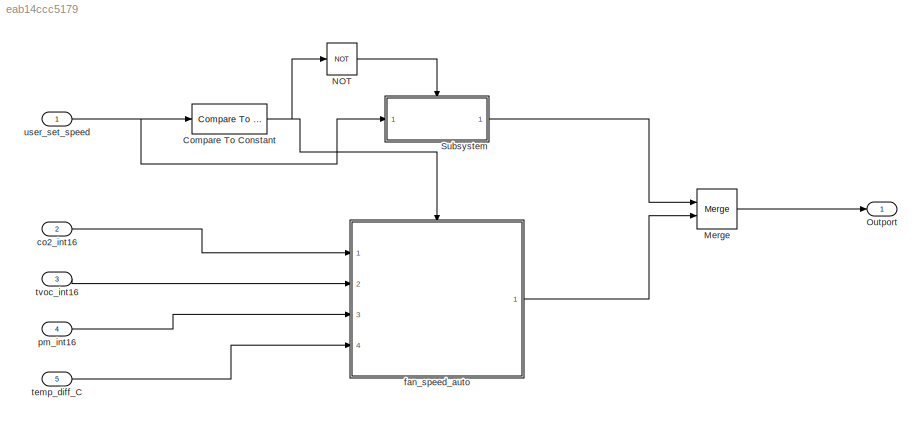
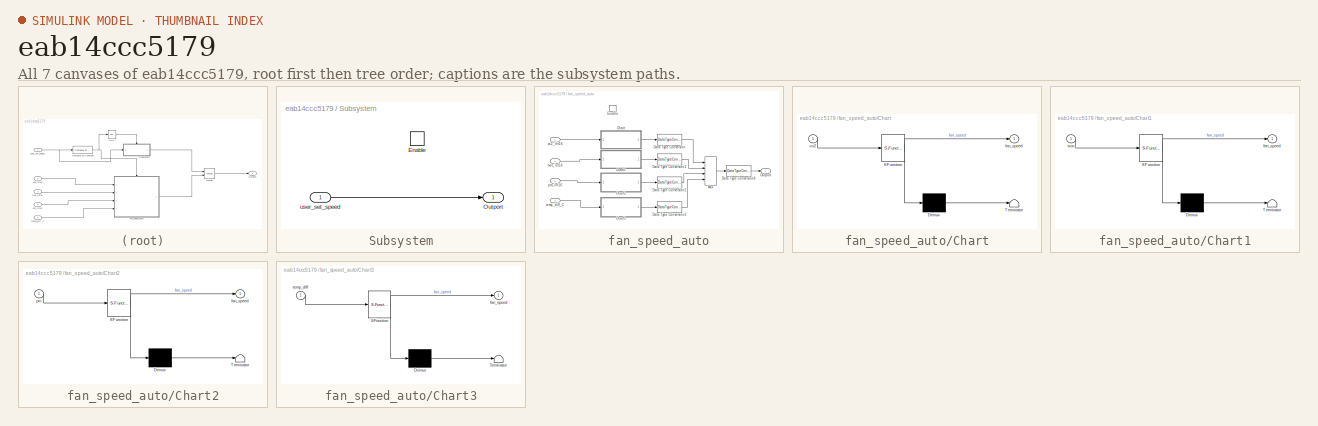
[diagram: thumbnail index - all 7 canvases of the model, root first then tree order]
MODEL slx_eab14ccc5179
KIND model
CONFIG AbsTol = auto
CONFIG EnableMultiTasking = off
CONFIG FixedStep = auto
CONFIG MaxStep = auto
CONFIG MinStep = auto
CONFIG RelTol = 1e-3
CONFIG SampleTimeConstraint = Unconstrained
CONFIG SolverName = VariableStepAuto
CONFIG StartTime = 0.0
CONFIG StopTime = 10.0
BLOCK [Reference] Compare To Constant  REF=simulink/Logic and Bit
Operations/Compare
To Constant
  Ports = [1, 1]
  SourceBlock = simulink/Logic and Bit\nOperations/Compare\nTo Constant
  SourceProductBaseCode = SL
  SourceType = Compare To Constant
BLOCK [Merge] Merge
  Ports = [2, 1]
BLOCK [Logic] NOT
  AllPortsSameDT = off
  IconShape = distinctive
  Operator = NOT
  OutDataTypeStr = boolean
  Ports = [1, 1]
BLOCK [Outport] Outport
BLOCK [SubSystem] Subsystem
  Ports = [1, 1, 1]
  RequestExecContextInheritance = off
BLOCK [EnablePort] Subsystem/Enable
  Ports = []
BLOCK [Outport] Subsystem/Outport
BLOCK [Inport] Subsystem/user_set_speed
BLOCK [Inport] co2_int16
  OutDataTypeStr = uint16
  Port = 2
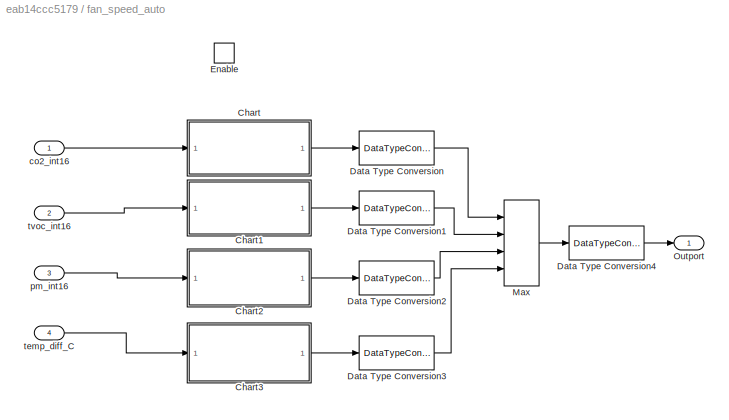
BLOCK [SubSystem] fan_speed_auto
  Ports = [4, 1, 1]
  RequestExecContextInheritance = off
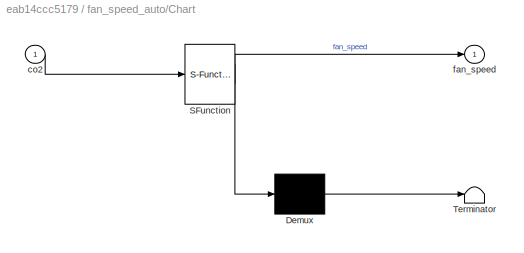
BLOCK [SubSystem] fan_speed_auto/Chart
  ErrorFcn = Stateflow.Translate.translate
  PermitHierarchicalResolution = ExplicitOnly
  Ports = [1, 1]
  RequestExecContextInheritance = off
  SFBlockType = Chart
  TreatAsAtomicUnit = on
BLOCK [Demux] fan_speed_auto/Chart/ Demux 
  Outputs = 1
  Ports = [1, 1]
BLOCK [S-Function] fan_speed_auto/Chart/ SFunction 
  EnableBusSupport = on
  FunctionName = sf_sfun
  PortCounts = [1 2]
  Ports = [1, 2]
  SFcnIsStateOwnerBlock = off
  SFunctionDeploymentMode = off
  Tag = Stateflow S-Function 3
BLOCK [Terminator] fan_speed_auto/Chart/ Terminator 
BLOCK [Inport] fan_speed_auto/Chart/co2
BLOCK [Outport] fan_speed_auto/Chart/fan_speed
BLOCK [SubSystem] fan_speed_auto/Chart1
  ErrorFcn = Stateflow.Translate.translate
  PermitHierarchicalResolution = ExplicitOnly
  Ports = [1, 1]
  RequestExecContextInheritance = off
  SFBlockType = Chart
  TreatAsAtomicUnit = on
BLOCK [Demux] fan_speed_auto/Chart1/ Demux 
  Outputs = 1
  Ports = [1, 1]
BLOCK [S-Function] fan_speed_auto/Chart1/ SFunction 
  EnableBusSupport = on
  FunctionName = sf_sfun
  PortCounts = [1 2]
  Ports = [1, 2]
  SFcnIsStateOwnerBlock = off
  SFunctionDeploymentMode = off
  Tag = Stateflow S-Function 1
BLOCK [Terminator] fan_speed_auto/Chart1/ Terminator 
BLOCK [Outport] fan_speed_auto/Chart1/fan_speed
BLOCK [Inport] fan_speed_auto/Chart1/tvoc
BLOCK [SubSystem] fan_speed_auto/Chart2
  ErrorFcn = Stateflow.Translate.translate
  PermitHierarchicalResolution = ExplicitOnly
  Ports = [1, 1]
  RequestExecContextInheritance = off
  SFBlockType = Chart
  TreatAsAtomicUnit = on
BLOCK [Demux] fan_speed_auto/Chart2/ Demux 
  Outputs = 1
  Ports = [1, 1]
BLOCK [S-Function] fan_speed_auto/Chart2/ SFunction 
  EnableBusSupport = on
  FunctionName = sf_sfun
  PortCounts = [1 2]
  Ports = [1, 2]
  SFcnIsStateOwnerBlock = off
  SFunctionDeploymentMode = off
  Tag = Stateflow S-Function 2
BLOCK [Terminator] fan_speed_auto/Chart2/ Terminator 
BLOCK [Outport] fan_speed_auto/Chart2/fan_speed
BLOCK [Inport] fan_speed_auto/Chart2/pm
BLOCK [SubSystem] fan_speed_auto/Chart3
  ErrorFcn = Stateflow.Translate.translate
  PermitHierarchicalResolution = ExplicitOnly
  Ports = [1, 1]
  RequestExecContextInheritance = off
  SFBlockType = Chart
  TreatAsAtomicUnit = on
BLOCK [Demux] fan_speed_auto/Chart3/ Demux 
  Outputs = 1
  Ports = [1, 1]
BLOCK [S-Function] fan_speed_auto/Chart3/ SFunction 
  EnableBusSupport = on
  FunctionName = sf_sfun
  PortCounts = [1 2]
  Ports = [1, 2]
  SFcnIsStateOwnerBlock = off
  SFunctionDeploymentMode = off
  Tag = Stateflow S-Function 4
BLOCK [Terminator] fan_speed_auto/Chart3/ Terminator 
BLOCK [Outport] fan_speed_auto/Chart3/fan_speed
BLOCK [Inport] fan_speed_auto/Chart3/temp_diff
BLOCK [DataTypeConversion] fan_speed_auto/Data Type Conversion
  OutDataTypeStr = uint8
  RndMeth = Floor
  SaturateOnIntegerOverflow = off
BLOCK [DataTypeConversion] fan_speed_auto/Data Type Conversion1
  OutDataTypeStr = uint8
  RndMeth = Floor
  SaturateOnIntegerOverflow = off
BLOCK [DataTypeConversion] fan_speed_auto/Data Type Conversion2
  OutDataTypeStr = uint8
  RndMeth = Floor
  SaturateOnIntegerOverflow = off
BLOCK [DataTypeConversion] fan_speed_auto/Data Type Conversion3
  OutDataTypeStr = uint8
  RndMeth = Floor
  SaturateOnIntegerOverflow = off
BLOCK [DataTypeConversion] fan_speed_auto/Data Type Conversion4
  OutDataTypeStr = Enum: fan_speed_enum
  RndMeth = Floor
  SaturateOnIntegerOverflow = off
BLOCK [EnablePort] fan_speed_auto/Enable
  Ports = []
BLOCK [MinMax] fan_speed_auto/Max
  Function = max
  Inputs = 4
  Ports = [4, 1]
BLOCK [Outport] fan_speed_auto/Outport
BLOCK [Inport] fan_speed_auto/co2_int16
BLOCK [Inport] fan_speed_auto/pm_int16
  Port = 3
BLOCK [Inport] fan_speed_auto/temp_diff_C
  Port = 4
BLOCK [Inport] fan_speed_auto/tvoc_int16
  Port = 2
BLOCK [Inport] pm_int16
  OutDataTypeStr = uint16
  Port = 4
BLOCK [Inport] temp_diff_C
  OutDataTypeStr = double
  Port = 5
BLOCK [Inport] tvoc_int16
  OutDataTypeStr = uint16
  Port = 3
BLOCK [Inport] user_set_speed
  OutDataTypeStr = Enum: fan_speed_enum
NET Compare To Constant:1 -> NOT:1, fan_speed_auto:enable
LINE Merge:1 -> Outport:1
LINE NOT:1 -> Subsystem:enable
LINE Subsystem/user_set_speed:1 -> Subsystem/Outport:1
LINE Subsystem:1 -> Merge:1
LINE co2_int16:1 -> fan_speed_auto:1
LINE fan_speed_auto/Chart1:1 -> fan_speed_auto/Data Type Conversion1:1
LINE fan_speed_auto/Chart2:1 -> fan_speed_auto/Data Type Conversion2:1
LINE fan_speed_auto/Chart3:1 -> fan_speed_auto/Data Type Conversion3:1
LINE fan_speed_auto/Chart:1 -> fan_speed_auto/Data Type Conversion:1
LINE fan_speed_auto/Data Type Conversion1:1 -> fan_speed_auto/Max:2
LINE fan_speed_auto/Data Type Conversion2:1 -> fan_speed_auto/Max:3
LINE fan_speed_auto/Data Type Conversion3:1 -> fan_speed_auto/Max:4
LINE fan_speed_auto/Data Type Conversion4:1 -> fan_speed_auto/Outport:1
LINE fan_speed_auto/Data Type Conversion:1 -> fan_speed_auto/Max:1
LINE fan_speed_auto/Max:1 -> fan_speed_auto/Data Type Conversion4:1
LINE fan_speed_auto/co2_int16:1 -> fan_speed_auto/Chart:1
LINE fan_speed_auto/pm_int16:1 -> fan_speed_auto/Chart2:1
LINE fan_speed_auto/temp_diff_C:1 -> fan_speed_auto/Chart3:1
LINE fan_speed_auto/tvoc_int16:1 -> fan_speed_auto/Chart1:1
LINE fan_speed_auto:1 -> Merge:2
LINE pm_int16:1 -> fan_speed_auto:3
LINE temp_diff_C:1 -> fan_speed_auto:4
LINE tvoc_int16:1 -> fan_speed_auto:2
NET user_set_speed:1 -> Compare To Constant:1, Subsystem:1
note: NET lines group one-source signal fan-out (src -> all destinations, sorted); 1:1 wires keep LINE
CHART fan_speed_auto/Chart1 states=3 transitions=5
  STATE_LABEL 'high\ndu:fan_speed=fan_speed_enum.high'
  STATE_LABEL 'mid\ndu:fan_speed=fan_speed_enum.mid'
  STATE_LABEL 'low\ndu:fan_speed=fan_speed_enum.low'
CHART fan_speed_auto/Chart2 states=3 transitions=5
  STATE_LABEL 'high\ndu:fan_speed=fan_speed_enum.high'
  STATE_LABEL 'mid\ndu:fan_speed=fan_speed_enum.mid'
  STATE_LABEL 'low\ndu:fan_speed=fan_speed_enum.low'
CHART fan_speed_auto/Chart states=3 transitions=5
  STATE_LABEL 'high\ndu:fan_speed=fan_speed_enum.high'
  STATE_LABEL 'mid\ndu:fan_speed=fan_speed_enum.mid'
  STATE_LABEL 'low\ndu:fan_speed=fan_speed_enum.low'
CHART fan_speed_auto/Chart3 states=3 transitions=5
  STATE_LABEL 'high\ndu:fan_speed=fan_speed_enum.high'
  STATE_LABEL 'mid\ndu:fan_speed=fan_speed_enum.mid'
  STATE_LABEL 'low\ndu:fan_speed=fan_speed_enum.low'
CHART  states=0 transitions=0
CHART  states=0 transitions=0
CHART  states=0 transitions=0
CHART  states=0 transitions=0
